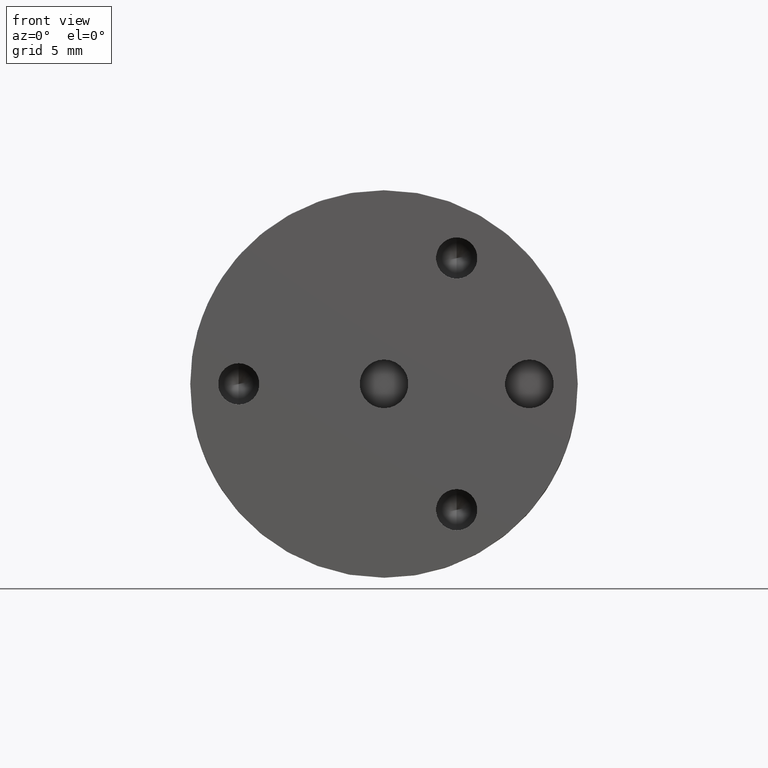
[diagram: clean part render]
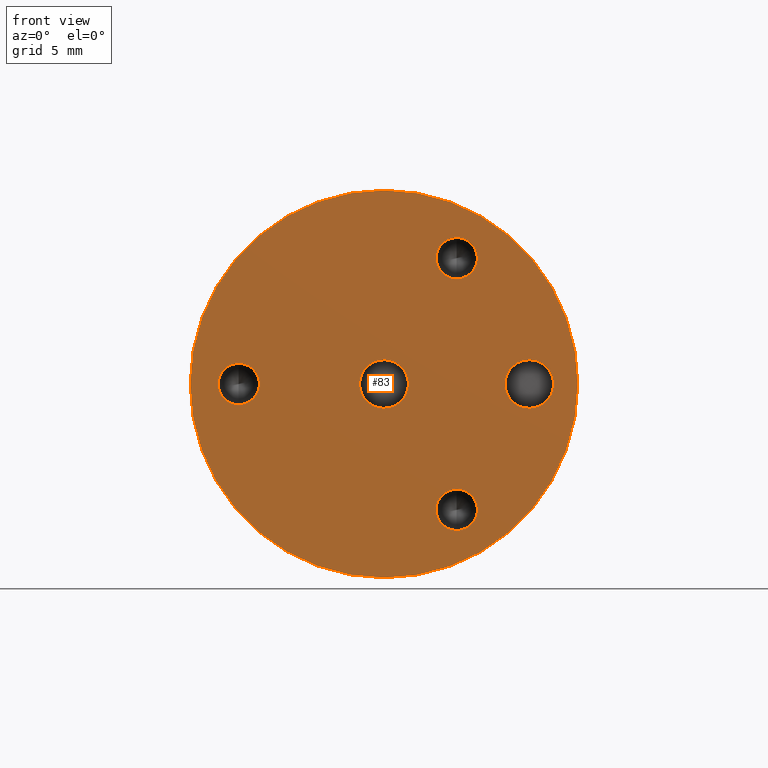
[diagram: same view with one face highlighted and labeled with its STEP entity id]
A machine part, front view. The second image highlights one B-rep face of the part: STEP entity #83.
In plain terms, the highlighted planar face has unit normal (0, 1, 0).
Its self-contained STEP definition (entity closure, byte-faithful):
#10 = AXIS2_PLACEMENT_3D ( 'NONE', #208, #205, #641 ) ;
#20 = VERTEX_POINT ( 'NONE', #255 ) ;
#36 = ORIENTED_EDGE ( 'NONE', *, *, #609, .F. ) ;
#42 = AXIS2_PLACEMENT_3D ( 'NONE', #728, #788, #350 ) ;
#47 = EDGE_LOOP ( 'NONE', ( #390, #36 ) ) ;
#48 = AXIS2_PLACEMENT_3D ( 'NONE', #784, #530, #527 ) ;
#49 = CARTESIAN_POINT ( 'NONE',  ( 4.762500000000009948, 2.721777511104993564E-17, -6.896341971046772379 ) ) ;
#58 = VERTEX_POINT ( 'NONE', #144 ) ;
#59 = DIRECTION ( 'NONE',  ( 0.0000000000000000000, 0.0000000000000000000, -1.000000000000000000 ) ) ;
#83 = ADVANCED_FACE ( 'NONE', ( #515, #304, #245, #230, #789, #282 ), #496, .F. ) ;
#85 = EDGE_CURVE ( 'NONE', #468, #682, #536, .T. ) ;
#87 = CIRCLE ( 'NONE', #42, 1.593999999999999861 ) ;
#89 = DIRECTION ( 'NONE',  ( 0.0000000000000000000, 0.0000000000000000000, -1.000000000000000000 ) ) ;
#92 = DIRECTION ( 'NONE',  ( -0.0000000000000000000, -1.000000000000000000, -0.0000000000000000000 ) ) ;
#98 = VERTEX_POINT ( 'NONE', #519 ) ;
#99 = ORIENTED_EDGE ( 'NONE', *, *, #459, .F. ) ;
#111 = EDGE_CURVE ( 'NONE', #192, #285, #447, .T. ) ;
#113 = DIRECTION ( 'NONE',  ( -0.0000000000000000000, -1.000000000000000000, -0.0000000000000000000 ) ) ;
#119 = CIRCLE ( 'NONE', #383, 1.593999999999999861 ) ;
#121 = EDGE_LOOP ( 'NONE', ( #99, #305 ) ) ;
#126 = EDGE_CURVE ( 'NONE', #780, #58, #128, .T. ) ;
#128 = CIRCLE ( 'NONE', #265, 1.352549999999999253 ) ;
#136 = EDGE_CURVE ( 'NONE', #58, #780, #640, .T. ) ;
#140 = DIRECTION ( 'NONE',  ( 0.0000000000000000000, 1.000000000000000000, 0.0000000000000000000 ) ) ;
#144 = CARTESIAN_POINT ( 'NONE',  ( 4.762500000000009948, 2.721777511104993564E-17, 9.601441971046771329 ) ) ;
#151 = CARTESIAN_POINT ( 'NONE',  ( 4.762500000000009948, 2.721777511104993564E-17, -8.248891971046772298 ) ) ;
#152 = DIRECTION ( 'NONE',  ( -0.0000000000000000000, -1.000000000000000000, -0.0000000000000000000 ) ) ;
#155 = DIRECTION ( 'NONE',  ( 0.0000000000000000000, 0.0000000000000000000, -1.000000000000000000 ) ) ;
#171 = ORIENTED_EDGE ( 'NONE', *, *, #126, .F. ) ;
#185 = CIRCLE ( 'NONE', #762, 1.593999999999999417 ) ;
#192 = VERTEX_POINT ( 'NONE', #49 ) ;
#195 = CARTESIAN_POINT ( 'NONE',  ( 0.0000000000000000000, 7.960204194457993925E-19, -1.593999999999999417 ) ) ;
#205 = DIRECTION ( 'NONE',  ( -0.0000000000000000000, -1.000000000000000000, -0.0000000000000000000 ) ) ;
#208 = CARTESIAN_POINT ( 'NONE',  ( 4.762500000000009948, 2.721777511104993564E-17, -8.248891971046772298 ) ) ;
#214 = DIRECTION ( 'NONE',  ( -0.0000000000000000000, -1.000000000000000000, -0.0000000000000000000 ) ) ;
#216 = EDGE_CURVE ( 'NONE', #682, #468, #356, .T. ) ;
#219 = CARTESIAN_POINT ( 'NONE',  ( -9.525000000000000355, 2.721777511104993564E-17, -1.352549999999999253 ) ) ;
#226 = DIRECTION ( 'NONE',  ( 0.0000000000000000000, 0.0000000000000000000, 1.000000000000000000 ) ) ;
#227 = CARTESIAN_POINT ( 'NONE',  ( 4.762500000000009948, 2.721777511104993564E-17, -9.601441971046771329 ) ) ;
#230 = FACE_BOUND ( 'NONE', #365, .T. ) ;
#233 = DIRECTION ( 'NONE',  ( -0.0000000000000000000, -1.000000000000000000, -0.0000000000000000000 ) ) ;
#238 = CIRCLE ( 'NONE', #585, 1.593999999999999417 ) ;
#242 = AXIS2_PLACEMENT_3D ( 'NONE', #596, #723, #226 ) ;
#245 = FACE_BOUND ( 'NONE', #613, .T. ) ;
#254 = ORIENTED_EDGE ( 'NONE', *, *, #216, .F. ) ;
#255 = CARTESIAN_POINT ( 'NONE',  ( 1.555301434917138433E-15, 0.0000000000000000000, 12.69999999999999929 ) ) ;
#258 = AXIS2_PLACEMENT_3D ( 'NONE', #782, #411, #731 ) ;
#263 = EDGE_LOOP ( 'NONE', ( #549, #621 ) ) ;
#265 = AXIS2_PLACEMENT_3D ( 'NONE', #393, #92, #708 ) ;
#276 = AXIS2_PLACEMENT_3D ( 'NONE', #151, #572, #89 ) ;
#282 = FACE_OUTER_BOUND ( 'NONE', #121, .T. ) ;
#284 = CARTESIAN_POINT ( 'NONE',  ( 1.952086997840880388E-16, 7.960204194457993925E-19, 1.593999999999999417 ) ) ;
#285 = VERTEX_POINT ( 'NONE', #227 ) ;
#286 = ORIENTED_EDGE ( 'NONE', *, *, #85, .F. ) ;
#287 = DIRECTION ( 'NONE',  ( 0.0000000000000000000, 0.0000000000000000000, -1.000000000000000000 ) ) ;
#291 = DIRECTION ( 'NONE',  ( -0.0000000000000000000, -1.000000000000000000, -0.0000000000000000000 ) ) ;
#304 = FACE_BOUND ( 'NONE', #263, .T. ) ;
#305 = ORIENTED_EDGE ( 'NONE', *, *, #308, .F. ) ;
#308 = EDGE_CURVE ( 'NONE', #20, #370, #730, .T. ) ;
#326 = EDGE_CURVE ( 'NONE', #440, #712, #185, .T. ) ;
#333 = CARTESIAN_POINT ( 'NONE',  ( -9.525000000000000355, 2.721777511104993564E-17, 0.0000000000000000000 ) ) ;
#350 = DIRECTION ( 'NONE',  ( 0.0000000000000000000, 0.0000000000000000000, -1.000000000000000000 ) ) ;
#356 = CIRCLE ( 'NONE', #48, 1.352549999999999253 ) ;
#358 = ORIENTED_EDGE ( 'NONE', *, *, #765, .F. ) ;
#365 = EDGE_LOOP ( 'NONE', ( #171, #734 ) ) ;
#370 = VERTEX_POINT ( 'NONE', #665 ) ;
#380 = CARTESIAN_POINT ( 'NONE',  ( 0.0000000000000000000, 0.0000000000000000000, 0.0000000000000000000 ) ) ;
#383 = AXIS2_PLACEMENT_3D ( 'NONE', #415, #113, #745 ) ;
#390 = ORIENTED_EDGE ( 'NONE', *, *, #450, .F. ) ;
#392 = AXIS2_PLACEMENT_3D ( 'NONE', #644, #214, #155 ) ;
#393 = CARTESIAN_POINT ( 'NONE',  ( 4.762500000000009948, 2.721777511104993564E-17, 8.248891971046772298 ) ) ;
#411 = DIRECTION ( 'NONE',  ( 0.0000000000000000000, 1.000000000000000000, 0.0000000000000000000 ) ) ;
#415 = CARTESIAN_POINT ( 'NONE',  ( 9.525000000000000355, 7.960204194457993925E-19, 0.0000000000000000000 ) ) ;
#440 = VERTEX_POINT ( 'NONE', #284 ) ;
#447 = CIRCLE ( 'NONE', #10, 1.352549999999999253 ) ;
#449 = VERTEX_POINT ( 'NONE', #622 ) ;
#450 = EDGE_CURVE ( 'NONE', #449, #98, #87, .T. ) ;
#454 = CARTESIAN_POINT ( 'NONE',  ( 4.762500000000009948, 2.721777511104993564E-17, 6.896341971046772379 ) ) ;
#459 = EDGE_CURVE ( 'NONE', #370, #20, #778, .T. ) ;
#468 = VERTEX_POINT ( 'NONE', #219 ) ;
#481 = CARTESIAN_POINT ( 'NONE',  ( 0.0000000000000000000, 7.960204194457993925E-19, 0.0000000000000000000 ) ) ;
#496 = PLANE ( 'NONE',  #591 ) ;
#515 = FACE_BOUND ( 'NONE', #47, .T. ) ;
#519 = CARTESIAN_POINT ( 'NONE',  ( 9.525000000000000355, 7.960204194457993925E-19, 1.593999999999999639 ) ) ;
#527 = DIRECTION ( 'NONE',  ( 0.0000000000000000000, 0.0000000000000000000, -1.000000000000000000 ) ) ;
#530 = DIRECTION ( 'NONE',  ( -0.0000000000000000000, -1.000000000000000000, -0.0000000000000000000 ) ) ;
#536 = CIRCLE ( 'NONE', #638, 1.352549999999999253 ) ;
#538 = CARTESIAN_POINT ( 'NONE',  ( -9.525000000000000355, 2.721777511104993564E-17, 1.352549999999999253 ) ) ;
#540 = ORIENTED_EDGE ( 'NONE', *, *, #111, .F. ) ;
#549 = ORIENTED_EDGE ( 'NONE', *, *, #683, .F. ) ;
#562 = DIRECTION ( 'NONE',  ( 0.0000000000000000000, -0.0000000000000000000, 1.000000000000000000 ) ) ;
#566 = EDGE_LOOP ( 'NONE', ( #358, #540 ) ) ;
#572 = DIRECTION ( 'NONE',  ( -0.0000000000000000000, -1.000000000000000000, -0.0000000000000000000 ) ) ;
#585 = AXIS2_PLACEMENT_3D ( 'NONE', #481, #291, #59 ) ;
#591 = AXIS2_PLACEMENT_3D ( 'NONE', #380, #140, #562 ) ;
#596 = CARTESIAN_POINT ( 'NONE',  ( 0.0000000000000000000, 0.0000000000000000000, 0.0000000000000000000 ) ) ;
#605 = CARTESIAN_POINT ( 'NONE',  ( 0.0000000000000000000, 7.960204194457993925E-19, 0.0000000000000000000 ) ) ;
#609 = EDGE_CURVE ( 'NONE', #98, #449, #119, .T. ) ;
#613 = EDGE_LOOP ( 'NONE', ( #286, #254 ) ) ;
#621 = ORIENTED_EDGE ( 'NONE', *, *, #326, .F. ) ;
#622 = CARTESIAN_POINT ( 'NONE',  ( 9.525000000000000355, 7.960204194457993925E-19, -1.593999999999999861 ) ) ;
#638 = AXIS2_PLACEMENT_3D ( 'NONE', #333, #152, #774 ) ;
#640 = CIRCLE ( 'NONE', #392, 1.352549999999999253 ) ;
#641 = DIRECTION ( 'NONE',  ( 0.0000000000000000000, 0.0000000000000000000, -1.000000000000000000 ) ) ;
#644 = CARTESIAN_POINT ( 'NONE',  ( 4.762500000000009948, 2.721777511104993564E-17, 8.248891971046772298 ) ) ;
#665 = CARTESIAN_POINT ( 'NONE',  ( 0.0000000000000000000, 0.0000000000000000000, -12.69999999999999929 ) ) ;
#682 = VERTEX_POINT ( 'NONE', #538 ) ;
#683 = EDGE_CURVE ( 'NONE', #712, #440, #238, .T. ) ;
#708 = DIRECTION ( 'NONE',  ( 0.0000000000000000000, 0.0000000000000000000, -1.000000000000000000 ) ) ;
#712 = VERTEX_POINT ( 'NONE', #195 ) ;
#723 = DIRECTION ( 'NONE',  ( 0.0000000000000000000, 1.000000000000000000, 0.0000000000000000000 ) ) ;
#728 = CARTESIAN_POINT ( 'NONE',  ( 9.525000000000000355, 7.960204194457993925E-19, 0.0000000000000000000 ) ) ;
#730 = CIRCLE ( 'NONE', #258, 12.69999999999999929 ) ;
#731 = DIRECTION ( 'NONE',  ( 0.0000000000000000000, 0.0000000000000000000, 1.000000000000000000 ) ) ;
#734 = ORIENTED_EDGE ( 'NONE', *, *, #136, .F. ) ;
#745 = DIRECTION ( 'NONE',  ( 0.0000000000000000000, 0.0000000000000000000, -1.000000000000000000 ) ) ;
#762 = AXIS2_PLACEMENT_3D ( 'NONE', #605, #233, #287 ) ;
#765 = EDGE_CURVE ( 'NONE', #285, #192, #766, .T. ) ;
#766 = CIRCLE ( 'NONE', #276, 1.352549999999999253 ) ;
#774 = DIRECTION ( 'NONE',  ( 0.0000000000000000000, 0.0000000000000000000, -1.000000000000000000 ) ) ;
#778 = CIRCLE ( 'NONE', #242, 12.69999999999999929 ) ;
#780 = VERTEX_POINT ( 'NONE', #454 ) ;
#782 = CARTESIAN_POINT ( 'NONE',  ( 0.0000000000000000000, 0.0000000000000000000, 0.0000000000000000000 ) ) ;
#784 = CARTESIAN_POINT ( 'NONE',  ( -9.525000000000000355, 2.721777511104993564E-17, 0.0000000000000000000 ) ) ;
#788 = DIRECTION ( 'NONE',  ( -0.0000000000000000000, -1.000000000000000000, -0.0000000000000000000 ) ) ;
#789 = FACE_BOUND ( 'NONE', #566, .T. ) ;